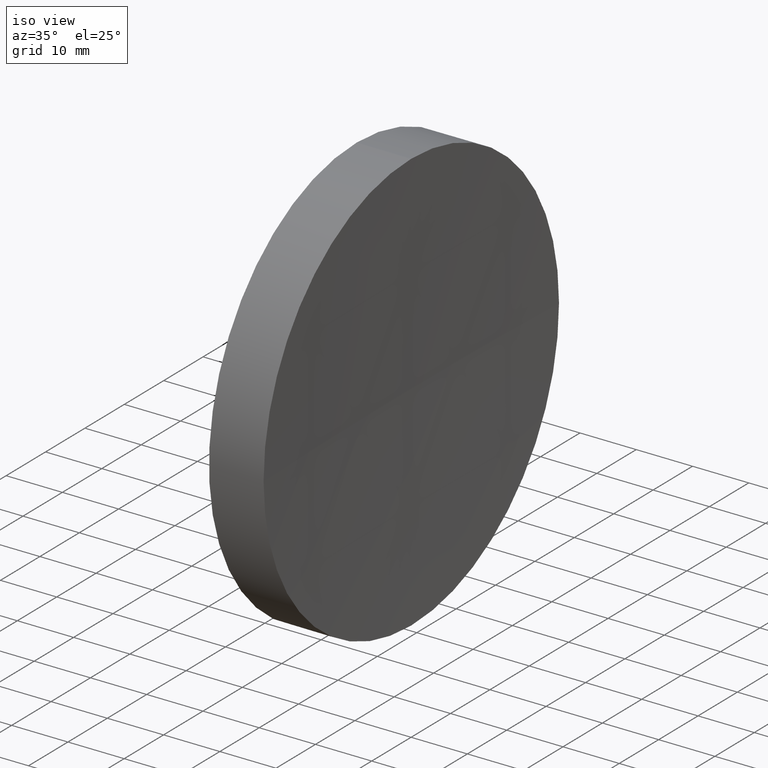
[diagram: clean part render]
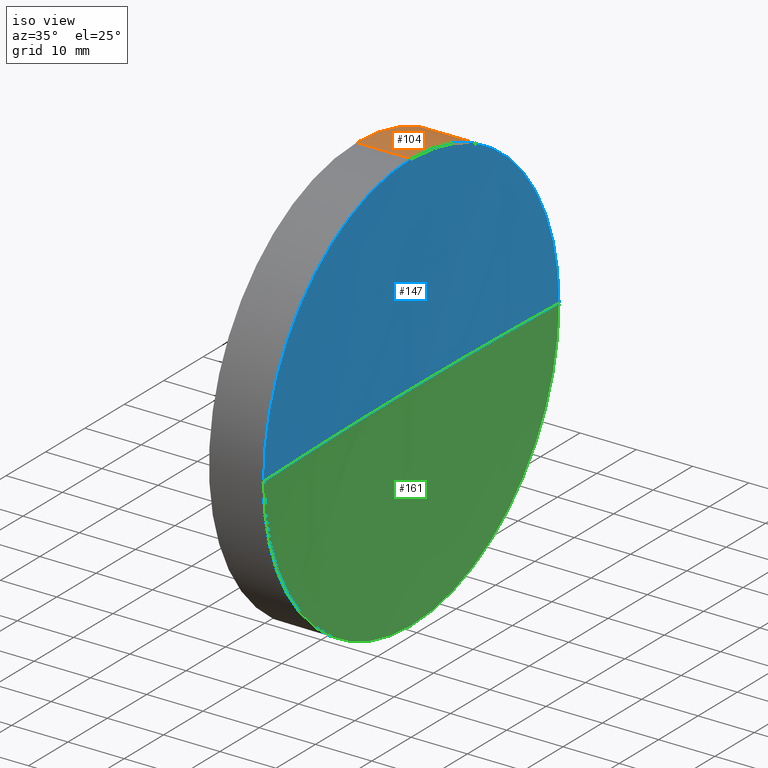
[diagram: same view with three faces highlighted in distinct colors, each labeled with its STEP entity id]
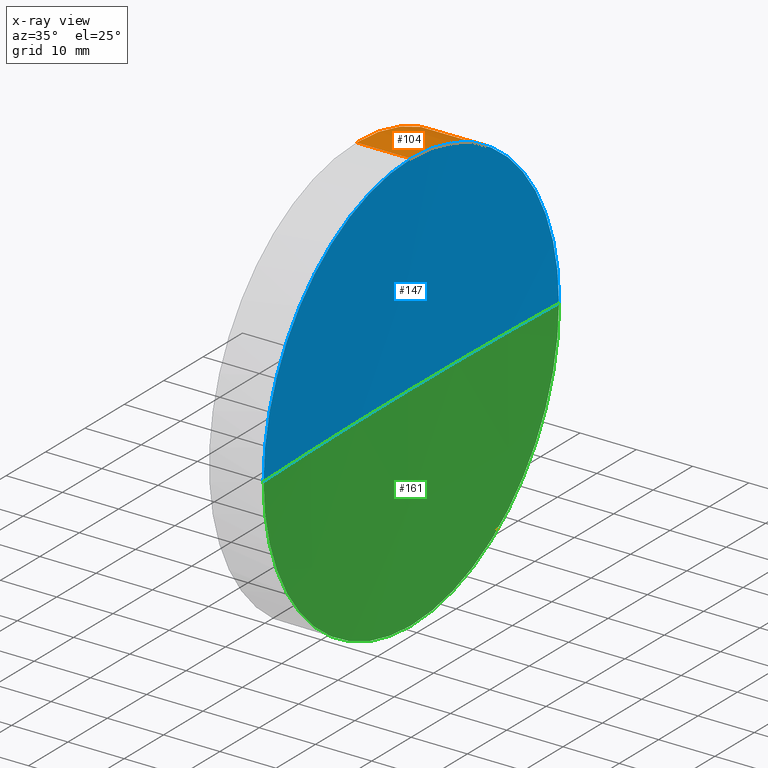
[diagram: x-ray of the same camera — body ghosted, the three highlighted faces saturated]
A machine part, iso view with three faces highlighted in distinct colors.
The next image is the same camera in x-ray (body ghosted, the three faces saturated) — at least one of them is partly hidden behind the body in this view.
Their STEP definitions:

[orange] entity #104 — the highlighted cylindrical surface (partial cylindrical patch) has radius 37.5 mm, axis along (-1, -0, -0).
#1 = CARTESIAN_POINT ( 'NONE',  ( 239.9029842799563700, 176.2560422467439600, 4.592425496802413400E-015 ) ) ;
#2 = EDGE_CURVE ( 'NONE', #143, #42, #85, .T. ) ;
#3 = CARTESIAN_POINT ( 'NONE',  ( 217.9702860043302100, 138.7560422467448700, -37.50000000000000700 ) ) ;
#6 = EDGE_CURVE ( 'NONE', #42, #91, #179, .T. ) ;
#15 = ORIENTED_EDGE ( 'NONE', *, *, #2, .F. ) ;
#25 = VERTEX_POINT ( 'NONE', #75 ) ;
#28 = DIRECTION ( 'NONE',  ( 0.0000000000000000000, 0.0000000000000000000, 1.000000000000000000 ) ) ;
#32 = ORIENTED_EDGE ( 'NONE', *, *, #90, .T. ) ;
#33 = AXIS2_PLACEMENT_3D ( 'NONE', #106, #105, #152 ) ;
#39 = AXIS2_PLACEMENT_3D ( 'NONE', #89, #121, #28 ) ;
#42 = VERTEX_POINT ( 'NONE', #133 ) ;
#56 = CIRCLE ( 'NONE', #39, 37.50000000000000700 ) ;
#57 = EDGE_CURVE ( 'NONE', #143, #97, #62, .T. ) ;
#62 = CIRCLE ( 'NONE', #119, 37.50000000000000700 ) ;
#63 = FACE_OUTER_BOUND ( 'NONE', #172, .T. ) ;
#65 = DIRECTION ( 'NONE',  ( 0.0000000000000000000, 0.0000000000000000000, 1.000000000000000000 ) ) ;
#71 = ORIENTED_EDGE ( 'NONE', *, *, #81, .T. ) ;
#75 = CARTESIAN_POINT ( 'NONE',  ( 239.9029842799564000, 138.7560422467448700, -37.50000000000000700 ) ) ;
#77 = CARTESIAN_POINT ( 'NONE',  ( 239.9029842799564000, 138.7560422467448700, 0.0000000000000000000 ) ) ;
#80 = CARTESIAN_POINT ( 'NONE',  ( 230.1996119052661200, 138.7560422467448700, -37.50000000000000700 ) ) ;
#81 = EDGE_CURVE ( 'NONE', #25, #91, #139, .T. ) ;
#85 = LINE ( 'NONE', #160, #132 ) ;
#89 = CARTESIAN_POINT ( 'NONE',  ( 239.9029842799564000, 138.7560422467448700, 0.0000000000000000000 ) ) ;
#90 = EDGE_CURVE ( 'NONE', #97, #25, #56, .T. ) ;
#91 = VERTEX_POINT ( 'NONE', #80 ) ;
#97 = VERTEX_POINT ( 'NONE', #1 ) ;
#100 = VECTOR ( 'NONE', #177, 1000.000000000000000 ) ;
#101 = DIRECTION ( 'NONE',  ( -1.000000000000000000, -0.0000000000000000000, -0.0000000000000000000 ) ) ;
#104 = ADVANCED_FACE ( 'NONE', ( #63 ), #129, .T. ) ;
#105 = DIRECTION ( 'NONE',  ( -1.000000000000000000, -0.0000000000000000000, -0.0000000000000000000 ) ) ;
#106 = CARTESIAN_POINT ( 'NONE',  ( 217.9702860043302100, 138.7560422467448700, 0.0000000000000000000 ) ) ;
#116 = ORIENTED_EDGE ( 'NONE', *, *, #6, .F. ) ;
#118 = DIRECTION ( 'NONE',  ( -1.000000000000000000, -0.0000000000000000000, -0.0000000000000000000 ) ) ;
#119 = AXIS2_PLACEMENT_3D ( 'NONE', #77, #178, #65 ) ;
#121 = DIRECTION ( 'NONE',  ( -1.000000000000000000, -0.0000000000000000000, -0.0000000000000000000 ) ) ;
#129 = CYLINDRICAL_SURFACE ( 'NONE', #33, 37.50000000000000700 ) ;
#131 = CARTESIAN_POINT ( 'NONE',  ( 239.9029842799564000, 138.7560422467448700, 37.50000000000000700 ) ) ;
#132 = VECTOR ( 'NONE', #118, 1000.000000000000000 ) ;
#133 = CARTESIAN_POINT ( 'NONE',  ( 230.1996119052661200, 138.7560422467448700, 37.50000000000000700 ) ) ;
#139 = LINE ( 'NONE', #3, #100 ) ;
#141 = ORIENTED_EDGE ( 'NONE', *, *, #57, .T. ) ;
#143 = VERTEX_POINT ( 'NONE', #131 ) ;
#152 = DIRECTION ( 'NONE',  ( 0.0000000000000000000, 0.0000000000000000000, 1.000000000000000000 ) ) ;
#160 = CARTESIAN_POINT ( 'NONE',  ( 217.9702860043302100, 138.7560422467448700, 37.50000000000000700 ) ) ;
#172 = EDGE_LOOP ( 'NONE', ( #32, #71, #116, #15, #141 ) ) ;
#175 = AXIS2_PLACEMENT_3D ( 'NONE', #184, #101, #186 ) ;
#177 = DIRECTION ( 'NONE',  ( -1.000000000000000000, -0.0000000000000000000, -0.0000000000000000000 ) ) ;
#178 = DIRECTION ( 'NONE',  ( -1.000000000000000000, -0.0000000000000000000, -0.0000000000000000000 ) ) ;
#179 = CIRCLE ( 'NONE', #175, 37.50000000000000700 ) ;
#184 = CARTESIAN_POINT ( 'NONE',  ( 230.1996119052661200, 138.7560422467448700, 0.0000000000000000000 ) ) ;
#186 = DIRECTION ( 'NONE',  ( 0.0000000000000000000, 0.0000000000000000000, 1.000000000000000000 ) ) ;

[blue] entity #147 — the highlighted spherical surface has radius 1000 mm.
#1 = CARTESIAN_POINT ( 'NONE',  ( 239.9029842799563700, 176.2560422467439600, 4.592425496802413400E-015 ) ) ;
#4 = CARTESIAN_POINT ( 'NONE',  ( 1239.199611913613600, 138.7560422467452700, 0.0000000000000000000 ) ) ;
#9 = FACE_OUTER_BOUND ( 'NONE', #40, .T. ) ;
#11 = CARTESIAN_POINT ( 'NONE',  ( 239.9029842799563700, 101.2560422467461900, 0.0000000000000000000 ) ) ;
#14 = CARTESIAN_POINT ( 'NONE',  ( 239.1996119136136100, 138.7560422467452100, 0.0000000000000000000 ) ) ;
#19 = ORIENTED_EDGE ( 'NONE', *, *, #72, .T. ) ;
#24 = AXIS2_PLACEMENT_3D ( 'NONE', #4, #31, #162 ) ;
#27 = EDGE_CURVE ( 'NONE', #97, #29, #99, .T. ) ;
#29 = VERTEX_POINT ( 'NONE', #14 ) ;
#31 = DIRECTION ( 'NONE',  ( 0.0000000000000000000, 0.0000000000000000000, 1.000000000000000000 ) ) ;
#40 = EDGE_LOOP ( 'NONE', ( #76, #166, #67, #19 ) ) ;
#44 = AXIS2_PLACEMENT_3D ( 'NONE', #50, #82, #46 ) ;
#46 = DIRECTION ( 'NONE',  ( -1.000000000000000000, 0.0000000000000000000, 0.0000000000000000000 ) ) ;
#48 = DIRECTION ( 'NONE',  ( 0.0000000000000000000, -1.000000000000000000, -1.224646799147353000E-016 ) ) ;
#50 = CARTESIAN_POINT ( 'NONE',  ( 1239.199611913613600, 138.7560422467452700, 0.0000000000000000000 ) ) ;
#57 = EDGE_CURVE ( 'NONE', #143, #97, #62, .T. ) ;
#62 = CIRCLE ( 'NONE', #119, 37.50000000000000700 ) ;
#65 = DIRECTION ( 'NONE',  ( 0.0000000000000000000, 0.0000000000000000000, 1.000000000000000000 ) ) ;
#67 = ORIENTED_EDGE ( 'NONE', *, *, #183, .F. ) ;
#69 = DIRECTION ( 'NONE',  ( 0.0000000000000000000, 0.0000000000000000000, 1.000000000000000000 ) ) ;
#72 = EDGE_CURVE ( 'NONE', #111, #29, #94, .T. ) ;
#76 = ORIENTED_EDGE ( 'NONE', *, *, #27, .F. ) ;
#77 = CARTESIAN_POINT ( 'NONE',  ( 239.9029842799564000, 138.7560422467448700, 0.0000000000000000000 ) ) ;
#82 = DIRECTION ( 'NONE',  ( 0.0000000000000000000, 0.0000000000000000000, -1.000000000000000000 ) ) ;
#94 = CIRCLE ( 'NONE', #44, 999.9999999999998900 ) ;
#97 = VERTEX_POINT ( 'NONE', #1 ) ;
#99 = CIRCLE ( 'NONE', #145, 1000.000000000000000 ) ;
#103 = AXIS2_PLACEMENT_3D ( 'NONE', #113, #112, #69 ) ;
#111 = VERTEX_POINT ( 'NONE', #11 ) ;
#112 = DIRECTION ( 'NONE',  ( -1.000000000000000000, -0.0000000000000000000, -0.0000000000000000000 ) ) ;
#113 = CARTESIAN_POINT ( 'NONE',  ( 239.9029842799564000, 138.7560422467448700, 0.0000000000000000000 ) ) ;
#119 = AXIS2_PLACEMENT_3D ( 'NONE', #77, #178, #65 ) ;
#131 = CARTESIAN_POINT ( 'NONE',  ( 239.9029842799564000, 138.7560422467448700, 37.50000000000000700 ) ) ;
#143 = VERTEX_POINT ( 'NONE', #131 ) ;
#145 = AXIS2_PLACEMENT_3D ( 'NONE', #148, #163, #48 ) ;
#147 = ADVANCED_FACE ( 'NONE', ( #9 ), #174, .F. ) ;
#148 = CARTESIAN_POINT ( 'NONE',  ( 1239.199611913613600, 138.7560422467452700, 0.0000000000000000000 ) ) ;
#162 = DIRECTION ( 'NONE',  ( 0.0000000000000000000, -1.000000000000000000, 0.0000000000000000000 ) ) ;
#163 = DIRECTION ( 'NONE',  ( 0.0000000000000000000, -1.224646799147353200E-016, 1.000000000000000000 ) ) ;
#164 = CIRCLE ( 'NONE', #103, 37.50000000000000700 ) ;
#166 = ORIENTED_EDGE ( 'NONE', *, *, #57, .F. ) ;
#174 = SPHERICAL_SURFACE ( 'NONE', #24, 999.9999999999998900 ) ;
#178 = DIRECTION ( 'NONE',  ( -1.000000000000000000, -0.0000000000000000000, -0.0000000000000000000 ) ) ;
#183 = EDGE_CURVE ( 'NONE', #111, #143, #164, .T. ) ;

[green] entity #161 — the highlighted spherical surface has radius 1000 mm.
#1 = CARTESIAN_POINT ( 'NONE',  ( 239.9029842799563700, 176.2560422467439600, 4.592425496802413400E-015 ) ) ;
#10 = DIRECTION ( 'NONE',  ( 0.0000000000000000000, 0.0000000000000000000, 1.000000000000000000 ) ) ;
#11 = CARTESIAN_POINT ( 'NONE',  ( 239.9029842799563700, 101.2560422467461900, 0.0000000000000000000 ) ) ;
#12 = CARTESIAN_POINT ( 'NONE',  ( 239.9029842799564000, 138.7560422467448700, 0.0000000000000000000 ) ) ;
#14 = CARTESIAN_POINT ( 'NONE',  ( 239.1996119136136100, 138.7560422467452100, 0.0000000000000000000 ) ) ;
#17 = CIRCLE ( 'NONE', #93, 37.50000000000000700 ) ;
#25 = VERTEX_POINT ( 'NONE', #75 ) ;
#27 = EDGE_CURVE ( 'NONE', #97, #29, #99, .T. ) ;
#28 = DIRECTION ( 'NONE',  ( 0.0000000000000000000, 0.0000000000000000000, 1.000000000000000000 ) ) ;
#29 = VERTEX_POINT ( 'NONE', #14 ) ;
#36 = DIRECTION ( 'NONE',  ( 0.0000000000000000000, -1.000000000000000000, 0.0000000000000000000 ) ) ;
#39 = AXIS2_PLACEMENT_3D ( 'NONE', #89, #121, #28 ) ;
#44 = AXIS2_PLACEMENT_3D ( 'NONE', #50, #82, #46 ) ;
#46 = DIRECTION ( 'NONE',  ( -1.000000000000000000, 0.0000000000000000000, 0.0000000000000000000 ) ) ;
#48 = DIRECTION ( 'NONE',  ( 0.0000000000000000000, -1.000000000000000000, -1.224646799147353000E-016 ) ) ;
#50 = CARTESIAN_POINT ( 'NONE',  ( 1239.199611913613600, 138.7560422467452700, 0.0000000000000000000 ) ) ;
#56 = CIRCLE ( 'NONE', #39, 37.50000000000000700 ) ;
#60 = SPHERICAL_SURFACE ( 'NONE', #98, 999.9999999999998900 ) ;
#66 = DIRECTION ( 'NONE',  ( -1.000000000000000000, -0.0000000000000000000, -0.0000000000000000000 ) ) ;
#72 = EDGE_CURVE ( 'NONE', #111, #29, #94, .T. ) ;
#75 = CARTESIAN_POINT ( 'NONE',  ( 239.9029842799564000, 138.7560422467448700, -37.50000000000000700 ) ) ;
#82 = DIRECTION ( 'NONE',  ( 0.0000000000000000000, 0.0000000000000000000, -1.000000000000000000 ) ) ;
#89 = CARTESIAN_POINT ( 'NONE',  ( 239.9029842799564000, 138.7560422467448700, 0.0000000000000000000 ) ) ;
#90 = EDGE_CURVE ( 'NONE', #97, #25, #56, .T. ) ;
#93 = AXIS2_PLACEMENT_3D ( 'NONE', #12, #66, #10 ) ;
#94 = CIRCLE ( 'NONE', #44, 999.9999999999998900 ) ;
#96 = EDGE_CURVE ( 'NONE', #25, #111, #17, .T. ) ;
#97 = VERTEX_POINT ( 'NONE', #1 ) ;
#98 = AXIS2_PLACEMENT_3D ( 'NONE', #150, #108, #36 ) ;
#99 = CIRCLE ( 'NONE', #145, 1000.000000000000000 ) ;
#107 = ORIENTED_EDGE ( 'NONE', *, *, #27, .T. ) ;
#108 = DIRECTION ( 'NONE',  ( 0.0000000000000000000, 0.0000000000000000000, 1.000000000000000000 ) ) ;
#111 = VERTEX_POINT ( 'NONE', #11 ) ;
#115 = ORIENTED_EDGE ( 'NONE', *, *, #90, .F. ) ;
#121 = DIRECTION ( 'NONE',  ( -1.000000000000000000, -0.0000000000000000000, -0.0000000000000000000 ) ) ;
#130 = ORIENTED_EDGE ( 'NONE', *, *, #96, .F. ) ;
#140 = ORIENTED_EDGE ( 'NONE', *, *, #72, .F. ) ;
#142 = FACE_OUTER_BOUND ( 'NONE', #185, .T. ) ;
#145 = AXIS2_PLACEMENT_3D ( 'NONE', #148, #163, #48 ) ;
#148 = CARTESIAN_POINT ( 'NONE',  ( 1239.199611913613600, 138.7560422467452700, 0.0000000000000000000 ) ) ;
#150 = CARTESIAN_POINT ( 'NONE',  ( 1239.199611913613600, 138.7560422467452700, 0.0000000000000000000 ) ) ;
#161 = ADVANCED_FACE ( 'NONE', ( #142 ), #60, .F. ) ;
#163 = DIRECTION ( 'NONE',  ( 0.0000000000000000000, -1.224646799147353200E-016, 1.000000000000000000 ) ) ;
#185 = EDGE_LOOP ( 'NONE', ( #115, #107, #140, #130 ) ) ;